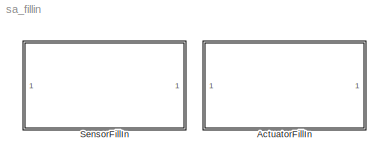
MODEL sa_fillin
KIND library
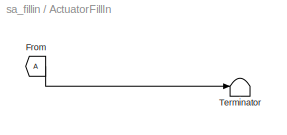
BLOCK [SubSystem] ActuatorFillIn
  MaskCallbackString = |
  MaskEnableString = on,on
  MaskIconFrame = on
  MaskIconOpaque = on
  MaskIconRotate = none
  MaskIconUnits = autoscale
  MaskInitialization = set_param([gcb '/From'],'GotoTag', GotoTag);
  MaskPromptString = Goto Tag|Signal Width
  MaskSelfModifiable = on
  MaskStyleString = edit,edit
  MaskTabNameString = ,
  MaskToolTipString = on,on
  MaskTunableValueString = on,on
  MaskType = ActuatorFillin
  MaskValueString = A|1
  MaskVarAliasString = ,
  MaskVariables = GotoTag=&1;Width=@2;
  MaskVisibilityString = on,on
  MinAlgLoopOccurrences = off
  Ports = []
  RTWSystemCode = Auto
  TreatAsAtomicUnit = off
BLOCK [From] ActuatorFillIn/From
  CloseFcn = tagdialog Close
  DialogController = Simulink.DDGSource
  GotoTag = A
BLOCK [Terminator] ActuatorFillIn/Terminator
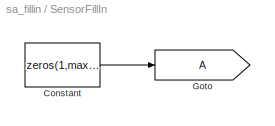
BLOCK [SubSystem] SensorFillIn
  MaskCallbackString = |
  MaskEnableString = on,on
  MaskIconFrame = on
  MaskIconOpaque = on
  MaskIconRotate = none
  MaskIconUnits = autoscale
  MaskInitialization = set_param([gcb '/Goto'],'GotoTag', GotoTag);
  MaskPromptString = Goto Tag|Signal Width
  MaskSelfModifiable = on
  MaskStyleString = edit,edit
  MaskTabNameString = ,
  MaskToolTipString = on,on
  MaskTunableValueString = on,on
  MaskType = SensorFillin
  MaskValueString = A|1
  MaskVarAliasString = ,
  MaskVariables = GotoTag=&1;Width=@2;
  MaskVisibilityString = on,on
  MinAlgLoopOccurrences = off
  Ports = []
  RTWSystemCode = Auto
  TreatAsAtomicUnit = off
BLOCK [Constant] SensorFillIn/Constant
  Value = zeros(1,max(1,Width))
BLOCK [Goto] SensorFillIn/Goto
  DialogController = Simulink.DDGSource
  GotoTag = A
  TagVisibility = global
LINE ActuatorFillIn/From:1 -> ActuatorFillIn/Terminator:1
LINE SensorFillIn/Constant:1 -> SensorFillIn/Goto:1
